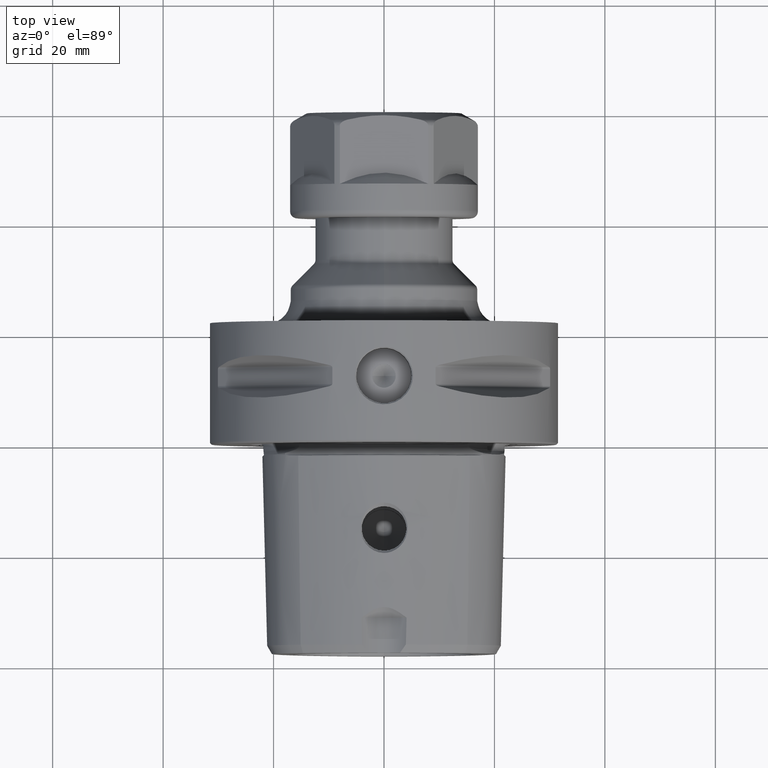
[diagram: clean part render]
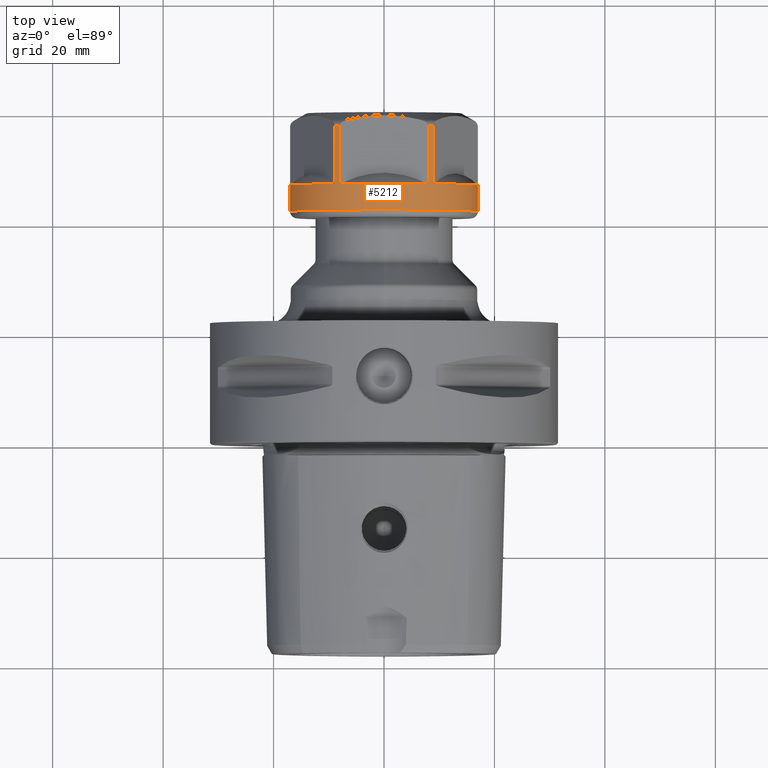
[diagram: same view with one face highlighted and labeled with its STEP entity id]
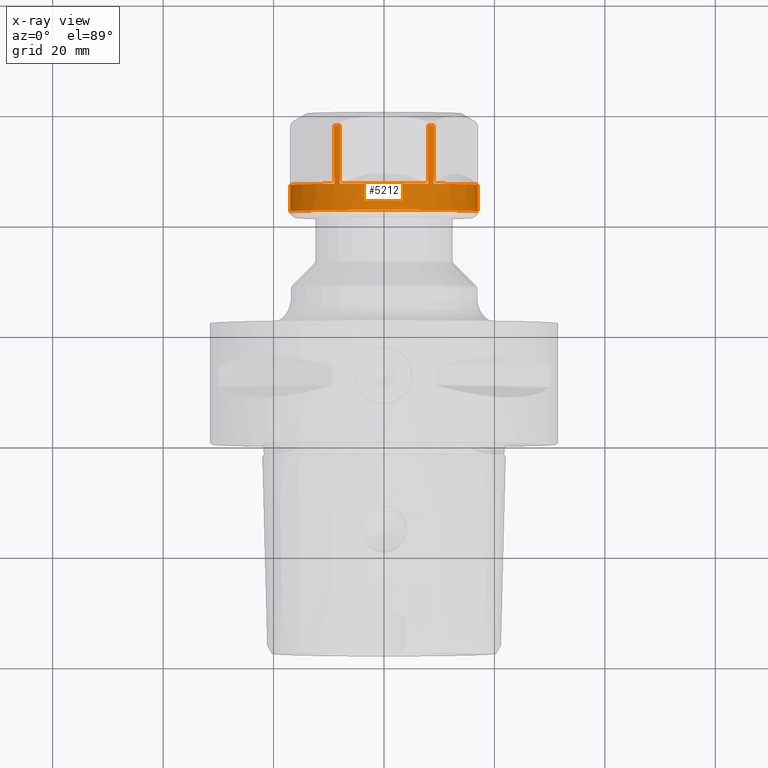
[diagram: x-ray of the same camera — body ghosted, the highlighted face saturated]
A machine part, top view. The second image highlights one B-rep face of the part: STEP entity #5212.
The next image is the same camera in x-ray: the body ghosted, the highlighted face saturated — about 0% of this face is hidden behind the body in this view.
In plain terms, the highlighted cylindrical surface (partial cylindrical patch) has radius 17 mm, axis along (0, 1, 0).
Its self-contained STEP definition (entity closure, byte-faithful):
#4425=DIRECTION('',(-1.E0,0.E0,4.859249806958E-11));
#4426=VECTOR('',#4425,1.529626135594E1);
#4427=CARTESIAN_POINT('',(1.654626135594E1,1.7E1,-1.152775558652E-10));
#4428=LINE('',#4427,#4426);
#4434=DIRECTION('',(-1.E0,0.E0,-4.859253938540E-11));
#4435=VECTOR('',#4434,1.529626135594E1);
#4436=CARTESIAN_POINT('',(1.654626135594E1,-1.7E1,1.152775494066E-10));
#4437=LINE('',#4436,#4435);
#4501=CARTESIAN_POINT('',(1.654626135594E1,-1.699038105677E1,
5.717967697245E-1));
#4503=CARTESIAN_POINT('',(1.654626135594E1,-8.990381056767E0,1.442820323028E1));
#4521=CARTESIAN_POINT('',(1.654626135594E1,-8.E0,1.5E1));
#4523=CARTESIAN_POINT('',(1.654626135594E1,8.E0,1.5E1));
#4541=CARTESIAN_POINT('',(1.654626135594E1,8.990381056767E0,1.442820323028E1));
#4553=CARTESIAN_POINT('',(1.654626135594E1,1.699038105677E1,5.717967697245E-1));
#4695=DIRECTION('',(9.999999992374E-1,-3.427788888926E-5,1.871268806668E-5));
#4696=VECTOR('',#4695,1.053590077871E1);
#4697=CARTESIAN_POINT('',(6.010360585267E0,-8.990019908330E0,1.442800607525E1));
#4698=LINE('',#4697,#4696);
#4699=DIRECTION('',(-1.E0,0.E0,0.E0));
#4700=VECTOR('',#4699,1.053616719791E1);
#4701=CARTESIAN_POINT('',(1.654626135594E1,-1.699038105677E1,
5.717967697245E-1));
#4702=LINE('',#4701,#4700);
#4703=CARTESIAN_POINT('',(6.010022197914E0,7.337104015724E-4,
-4.120040762721E-4));
#4704=DIRECTION('',(-1.E0,0.E0,0.E0));
#4705=DIRECTION('',(0.E0,-9.994334137081E-1,3.365786035761E-2));
#4706=AXIS2_PLACEMENT_3D('',#4703,#4704,#4705);
#4708=CARTESIAN_POINT('',(1.654626135594E1,0.E0,0.E0));
#4709=DIRECTION('',(-1.E0,0.E0,0.E0));
#4710=DIRECTION('',(0.E0,4.705882352941E-1,8.823529411765E-1));
#4711=AXIS2_PLACEMENT_3D('',#4708,#4709,#4710);
#4713=CARTESIAN_POINT('',(1.654626135594E1,0.E0,0.E0));
#4714=DIRECTION('',(-1.E0,0.E0,0.E0));
#4715=DIRECTION('',(0.E0,-5.288459445157E-1,8.487178370750E-1));
#4716=AXIS2_PLACEMENT_3D('',#4713,#4714,#4715);
#4718=CARTESIAN_POINT('',(1.654626135594E1,0.E0,0.E0));
#4719=DIRECTION('',(-1.E0,0.E0,0.E0));
#4720=DIRECTION('',(0.E0,-1.E0,0.E0));
#4721=AXIS2_PLACEMENT_3D('',#4718,#4719,#4720);
#4723=CARTESIAN_POINT('',(1.25E0,0.E0,0.E0));
#4724=DIRECTION('',(-1.E0,0.E0,0.E0));
#4725=DIRECTION('',(0.E0,-1.E0,0.E0));
#4726=AXIS2_PLACEMENT_3D('',#4723,#4724,#4725);
#4728=CARTESIAN_POINT('',(1.654626135594E1,0.E0,0.E0));
#4729=DIRECTION('',(-1.E0,0.E0,0.E0));
#4730=DIRECTION('',(0.E0,9.994341798098E-1,3.363510410144E-2));
#4731=AXIS2_PLACEMENT_3D('',#4728,#4729,#4730);
#4733=CARTESIAN_POINT('',(6.009993566245E0,2.034304302246E-4,
1.276242097576E-4));
#4734=DIRECTION('',(-1.E0,0.E0,0.E0));
#4735=DIRECTION('',(0.E0,5.288406942959E-1,8.487211085255E-1));
#4736=AXIS2_PLACEMENT_3D('',#4733,#4734,#4735);
#4756=DIRECTION('',(9.999999998846E-1,-1.315636510517E-5,-7.598885784195E-6));
#4757=VECTOR('',#4756,1.053639725432E1);
#4758=CARTESIAN_POINT('',(6.009864102845E0,1.699051967746E1,5.718768346038E-1));
#4759=LINE('',#4758,#4757);
#4760=DIRECTION('',(-1.E0,0.E0,0.E0));
#4761=VECTOR('',#4760,1.053628552473E1);
#4762=CARTESIAN_POINT('',(1.654626135594E1,8.990381056767E0,1.442820323028E1));
#4763=LINE('',#4762,#4761);
#4782=DIRECTION('',(1.E0,5.660973854209E-8,-2.603250325831E-7));
#4783=VECTOR('',#4782,1.053619155997E1);
#4784=CARTESIAN_POINT('',(6.010069795972E0,7.999999403549E0,1.500000274283E1));
#4785=LINE('',#4784,#4783);
#4786=DIRECTION('',(-1.E0,0.E0,0.E0));
#4787=VECTOR('',#4786,1.053618977066E1);
#4788=CARTESIAN_POINT('',(1.654626135594E1,-8.E0,1.5E1));
#4789=LINE('',#4788,#4787);
#4790=CARTESIAN_POINT('',(6.010015861223E0,-7.568525554981E-7,
-6.073012240115E-4));
#4791=DIRECTION('',(-1.E0,0.E0,0.E0));
#4792=DIRECTION('',(0.E0,-4.705733677049E-1,8.823608703965E-1));
#4793=AXIS2_PLACEMENT_3D('',#4790,#4791,#4792);
#4823=CARTESIAN_POINT('',(1.25E0,1.7E1,0.E0));
#4824=CARTESIAN_POINT('',(1.25E0,-1.7E1,0.E0));
#4825=VERTEX_POINT('',#4823);
#4826=VERTEX_POINT('',#4824);
#4831=CARTESIAN_POINT('',(1.654626135594E1,1.7E1,-1.152775558652E-10));
#4832=VERTEX_POINT('',#4831);
#4833=CARTESIAN_POINT('',(1.654626135594E1,-1.7E1,1.152775494066E-10));
#4834=VERTEX_POINT('',#4833);
#4847=VERTEX_POINT('',#4501);
#4848=VERTEX_POINT('',#4503);
#4849=VERTEX_POINT('',#4521);
#4850=VERTEX_POINT('',#4523);
#4851=VERTEX_POINT('',#4541);
#4852=VERTEX_POINT('',#4553);
#4859=CARTESIAN_POINT('',(6.010022197914E0,-1.699045297670E1,
5.717991917679E-1));
#4860=CARTESIAN_POINT('',(6.010022197914E0,-8.990424116186E0,1.442827233047E1));
#4861=VERTEX_POINT('',#4859);
#4862=VERTEX_POINT('',#4860);
#4875=CARTESIAN_POINT('',(6.009993566245E0,8.990371677756E0,1.442818817817E1));
#4876=CARTESIAN_POINT('',(6.009993566245E0,1.699035504402E1,5.717958944728E-1));
#4877=VERTEX_POINT('',#4875);
#4878=VERTEX_POINT('',#4876);
#4879=CARTESIAN_POINT('',(6.010015861223E0,-8.000026222655E0,1.500004916947E1));
#4880=CARTESIAN_POINT('',(6.010015861223E0,8.000025887465E0,1.500004854096E1));
#4881=VERTEX_POINT('',#4879);
#4882=VERTEX_POINT('',#4880);
#5182=CARTESIAN_POINT('',(-9.5E-1,0.E0,0.E0));
#5183=DIRECTION('',(1.E0,0.E0,0.E0));
#5184=DIRECTION('',(0.E0,-1.E0,0.E0));
#5185=AXIS2_PLACEMENT_3D('',#5182,#5183,#5184);
#5186=CYLINDRICAL_SURFACE('',#5185,1.7E1);
#5188=ORIENTED_EDGE('',*,*,#5187,.F.);
#5190=ORIENTED_EDGE('',*,*,#5189,.F.);
#5191=ORIENTED_EDGE('',*,*,#5056,.F.);
#5193=ORIENTED_EDGE('',*,*,#5192,.F.);
#5195=ORIENTED_EDGE('',*,*,#5194,.F.);
#5197=ORIENTED_EDGE('',*,*,#5196,.F.);
#5198=ORIENTED_EDGE('',*,*,#5040,.F.);
#5199=ORIENTED_EDGE('',*,*,#5161,.F.);
#5200=ORIENTED_EDGE('',*,*,#5176,.F.);
#5201=ORIENTED_EDGE('',*,*,#5166,.F.);
#5202=ORIENTED_EDGE('',*,*,#5026,.F.);
#5203=ORIENTED_EDGE('',*,*,#4981,.T.);
#5205=ORIENTED_EDGE('',*,*,#5204,.T.);
#5206=ORIENTED_EDGE('',*,*,#4977,.F.);
#5207=ORIENTED_EDGE('',*,*,#5070,.F.);
#5209=ORIENTED_EDGE('',*,*,#5208,.F.);
#5210=EDGE_LOOP('',(#5188,#5190,#5191,#5193,#5195,#5197,#5198,#5199,#5200,#5201,
#5202,#5203,#5205,#5206,#5207,#5209));
#5211=FACE_OUTER_BOUND('',#5210,.F.);
#5212=ADVANCED_FACE('',(#5211),#5186,.T.);
#4707=CIRCLE('',#4706,1.700081911817E1);
#4712=CIRCLE('',#4711,1.7E1);
#4717=CIRCLE('',#4716,1.7E1);
#4722=CIRCLE('',#4721,1.7E1);
#4727=CIRCLE('',#4726,1.7E1);
#4732=CIRCLE('',#4731,1.7E1);
#4737=CIRCLE('',#4736,1.699976636499E1);
#4794=CIRCLE('',#4793,1.700059122517E1);
#4977=EDGE_CURVE('',#4832,#4825,#4428,.T.);
#4981=EDGE_CURVE('',#4834,#4826,#4437,.T.);
#5026=EDGE_CURVE('',#4834,#4847,#4722,.T.);
#5040=EDGE_CURVE('',#4848,#4849,#4717,.T.);
#5056=EDGE_CURVE('',#4850,#4851,#4712,.T.);
#5070=EDGE_CURVE('',#4852,#4832,#4732,.T.);
#5161=EDGE_CURVE('',#4862,#4848,#4698,.T.);
#5166=EDGE_CURVE('',#4847,#4861,#4702,.T.);
#5176=EDGE_CURVE('',#4861,#4862,#4707,.T.);
#5187=EDGE_CURVE('',#4877,#4878,#4737,.T.);
#5189=EDGE_CURVE('',#4851,#4877,#4763,.T.);
#5192=EDGE_CURVE('',#4882,#4850,#4785,.T.);
#5194=EDGE_CURVE('',#4881,#4882,#4794,.T.);
#5196=EDGE_CURVE('',#4849,#4881,#4789,.T.);
#5204=EDGE_CURVE('',#4826,#4825,#4727,.T.);
#5208=EDGE_CURVE('',#4878,#4852,#4759,.T.);